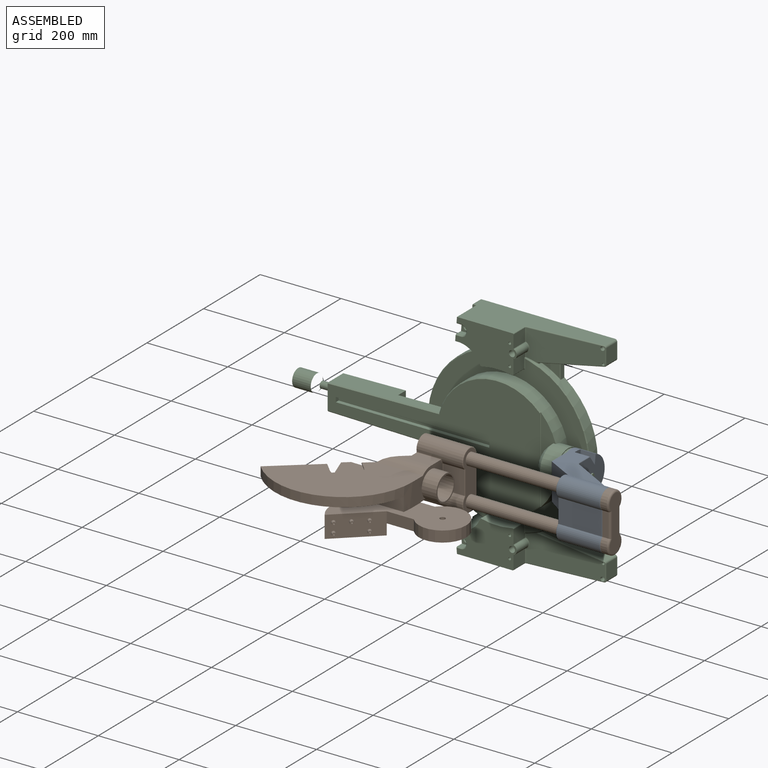
[diagram: assembled view]
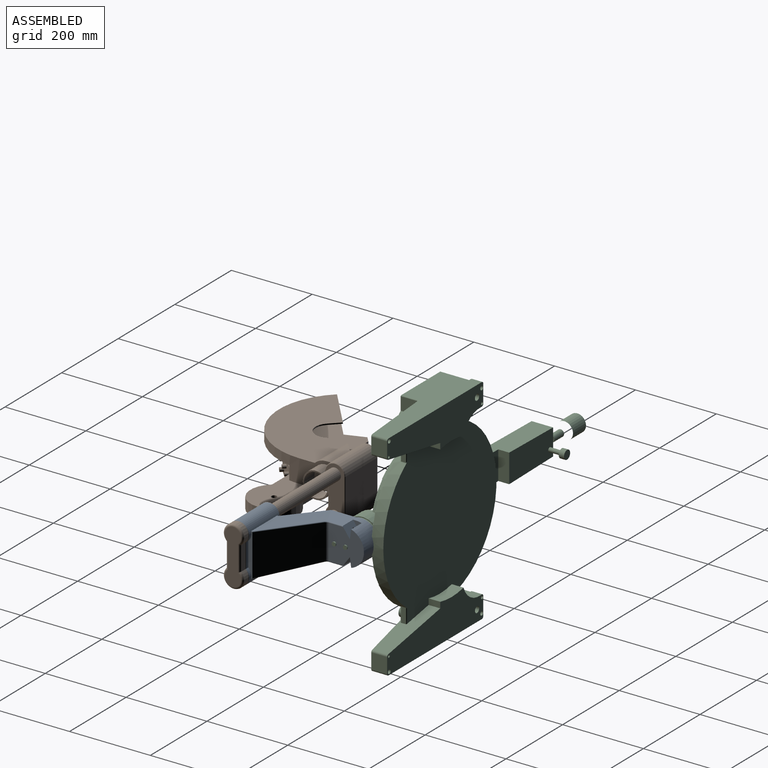
[diagram: assembled view, second angle]
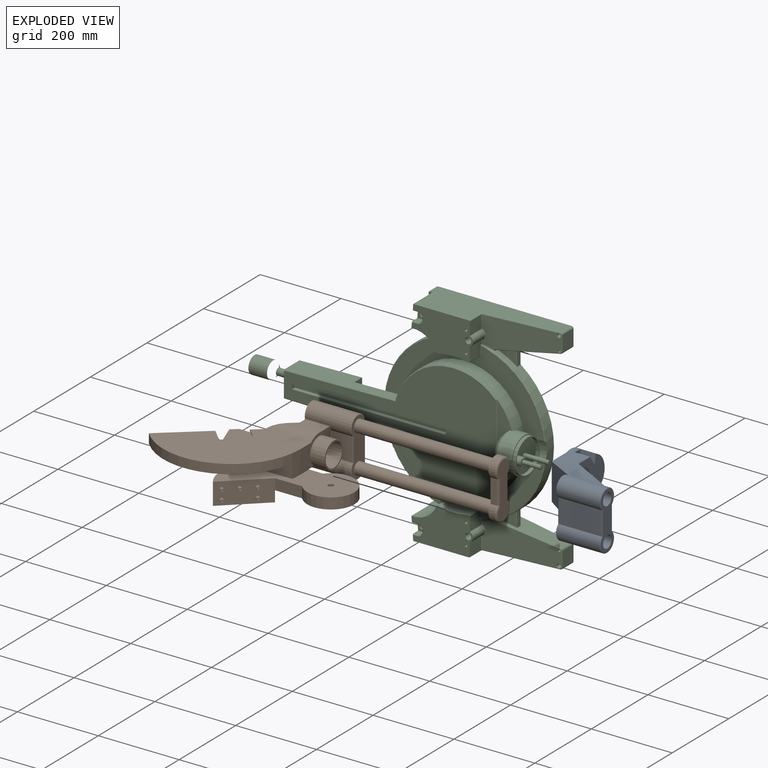
[diagram: exploded view]
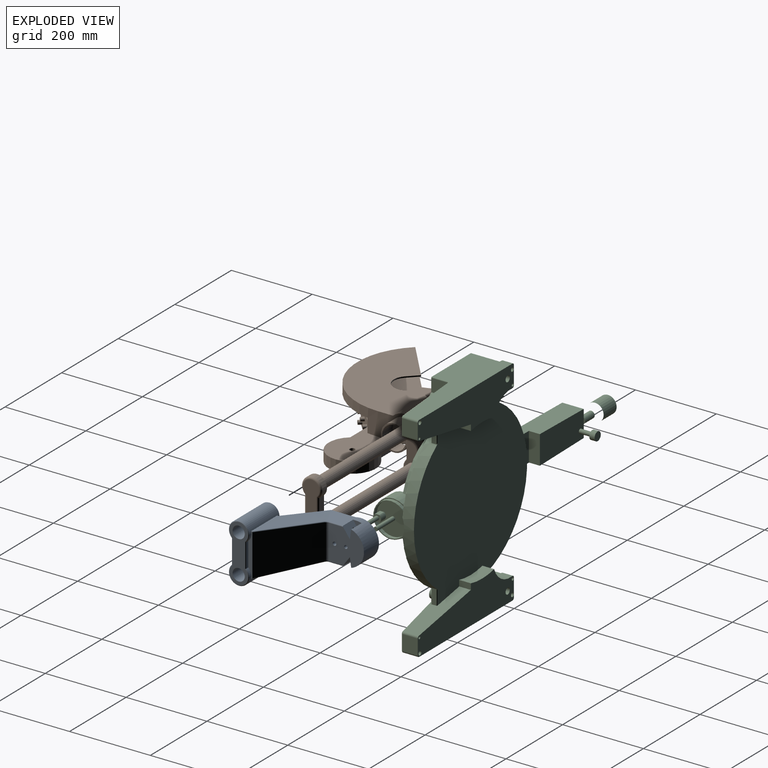
[diagram: exploded view, second angle]
ASSEMBLY  parts=3 mates=5
PART A: 60 faces, bbox 204.3x233.3x150.4 mm
  f0: cylinder r=40mm len=69.28mm, axis (1,0,0), area 837.8mm2, adj f1,f3,f7,f8
  f1: cylinder r=12mm len=22.39mm, axis (1,0,0), area 377mm2, adj f0,f2,f7,f8
  f2: cylinder r=16mm len=27.71mm, axis (1,0,0), area 335.1mm2, adj f1,f3,f7,f8
  f3: cylinder r=12mm len=22.39mm, axis (1,0,0), area 377mm2, adj f0,f2,f7,f8
  f4: cone r=1.23mm half-angle=59deg, axis (0,0.81,0.58), area 22.2mm2, adj f9
  f5: cylinder r=42mm len=84mm, axis (-1,0,0), area 791.7mm2, adj f8,f10
  f6: cone r=1.23mm half-angle=59deg, axis (0,0.81,-0.58), area 22.2mm2, adj f11
  f7: plane 72.5x38mm, normal (-1,0,0), area 1796.2mm2, adj f0,f1,f2,f3,f12
  f8: plane 84x84mm, normal (-1,0,0), area 3626.8mm2, adj f0,f1,f2,f3,f5,f15
  f9: cylinder r=2.46mm len=16.75mm, axis (0,-0.81,-0.58), area 264.1mm2, adj f4,f17
  f10: plane 90x90mm, normal (-1,0,0), area 820mm2, adj f5,f19
  f11: cylinder r=2.46mm len=16.75mm, axis (0,-0.81,0.58), area 264.1mm2, adj f6,f21
  f12: cylinder r=4.5mm len=40mm, axis (1,0,0), area 1131mm2, adj f7,f23
  f13: plane 37x23mm, normal (0,-0.99,-0.14), area 859.5mm2, adj f19,f20,f21,f23
  f14: plane 37x23mm, normal (0,-0.99,0.14), area 859.5mm2, adj f17,f18,f19,f23
  f15: cylinder r=4.19mm len=50mm, axis (1,0,0), area 1315.7mm2, adj f8,f23
  f16: cylinder r=2mm len=34.81mm, axis (0,1,0), area 107.1mm2, adj f17,f23,f25,f26
  f17: plane 37.62x25.62mm, normal (0,0.81,0.58), area 1119.8mm2, adj f9,f14,f16,f18,f23,f26
  f18: plane 25x21.27mm, normal (1,0,0), area 260.3mm2, adj f14,f17,f19,f26
  f19: cylinder r=45mm len=90mm, axis (1,0,0), area 6920.3mm2, adj f10,f13,f14,f18,f20,f23,f26,f27
  f20: plane 25x21.27mm, normal (1,0,0), area 260.3mm2, adj f13,f19,f21,f28
  f21: plane 37.62x25.62mm, normal (0,0.81,-0.58), area 1119.8mm2, adj f11,f13,f20,f22,f23,f28
  f22: cylinder r=2mm len=34.81mm, axis (0,-1,0), area 107.1mm2, adj f21,f23,f24,f28
  f23: plane 86.37x86mm, normal (1,0,0), area 6128.3mm2, adj f12,f13,f14,f15,f16,f17,f19,f21
  f24: torus R=12mm, axis (0,0,-1), area 17.2mm2, adj f22,f28,f30,f31,f34
  f25: torus R=12mm, axis (0,0,-1), area 17.2mm2, adj f16,f26,f29,f31,f32
  f26: plane 70.88x49.53mm, normal (0,0,1), area 2578.4mm2, adj f16,f17,f18,f19,f25,f27,f32,f33
  f27: plane 90x69.89mm, normal (-1,0,0), area 3109.1mm2, adj f19,f26,f28,f33
  f28: plane 70.88x49.53mm, normal (0,0,-1), area 2578.4mm2, adj f19,f20,f21,f22,f24,f27,f33,f34
  f29: torus R=12.04mm, axis (-0.03,0.05,1), area 16.9mm2, adj f25,f31,f32,f35
  f30: torus R=12.04mm, axis (0.03,-0.05,1), area 16.9mm2, adj f24,f31,f34,f36
  f31: cylinder r=10mm len=86.67mm, axis (0,0,-1), area 883.8mm2, adj f23,f24,f25,f29,f30,f37
  f32: bspline ~192.04x86.37mm, area 6377.7mm2, adj f25,f26,f29,f33,f35,f42,f43
  f33: cylinder r=2mm len=90.15mm, axis (0,0,1), area 182.8mm2, adj f26,f27,f28,f32,f34,f43
  f34: bspline ~192.54x86.37mm, area 6377.7mm2, adj f24,f28,f30,f33,f36,f43,f44
  f35: cylinder r=2mm len=137.94mm, axis (0.85,-0.52,0.05), area 482.6mm2, adj f29,f32,f37,f42,f45
  f36: cylinder r=2mm len=137.94mm, axis (0.85,-0.52,-0.05), area 482.6mm2, adj f30,f34,f37,f44,f45
  f37: plane 136.19x102.31mm, normal (0.52,0.86,0), area 15049.3mm2, adj f31,f35,f36,f45
  f38: cylinder r=2mm len=61.01mm, axis (0,0,-1), area 189mm2, adj f40,f41,f46,f47
  f39: cylinder r=2mm len=61.01mm, axis (0,0,1), area 189mm2, adj f40,f41,f47,f48
  f40: plane 141x46mm, normal (1,0,0), area 3545.9mm2, adj f38,f39,f41,f47,f49,f50
  f41: torus R=23mm, axis (-1,0,0), area 363.6mm2, adj f38,f39,f40,f51
  f42: plane 93.27x4.38mm, normal (0,0,1), area 284.3mm2, adj f32,f35,f45,f51,f52
  f43: plane 106x98.06mm, normal (-0.53,-0.85,0), area 11321.5mm2, adj f32,f33,f34,f52
  f44: plane 93.27x4.38mm, normal (0,0,-1), area 284.3mm2, adj f34,f36,f45,f52,f53
  f45: plane 106.29x10.29mm, normal (1,0,0), area 793.6mm2, adj f35,f36,f37,f42,f44,f46,f51,f53
  f46: plane 59.29x7mm, normal (0,1,0), area 415.1mm2, adj f38,f45,f51,f53
  f47: torus R=23mm, axis (-1,0,0), area 363.6mm2, adj f38,f39,f40,f53
  f48: plane 106x59.29mm, normal (0,-1,0), area 6285mm2, adj f39,f51,f53,f54
  f49: cylinder r=15mm len=110mm, axis (-1,0,0), area 10367.3mm2, adj f40,f55
  f50: cylinder r=15mm len=110mm, axis (-1,0,0), area 10367.3mm2, adj f40,f55
  f51: cylinder r=25mm len=106mm, axis (-1,0,0), area 10201.2mm2, adj f41,f42,f45,f46,f48,f52,f56,f57
  f52: plane 106x10mm, normal (-1,0,0), area 795mm2, adj f42,f43,f44,f51,f53,f57
  f53: cylinder r=25mm len=106mm, axis (-1,0,0), area 10201.2mm2, adj f44,f45,f46,f47,f48,f52,f57,f58
  f54: cylinder r=2mm len=61.01mm, axis (0,0,1), area 189mm2, adj f48,f55,f56,f58
  f55: plane 141x46mm, normal (-1,0,0), area 3545.9mm2, adj f49,f50,f54,f56,f58,f59
  f56: torus R=23mm, axis (-1,0,0), area 363.6mm2, adj f51,f54,f55,f59
  f57: plane 59.29x7mm, normal (0,1,0), area 415.1mm2, adj f51,f52,f53,f59
  f58: torus R=23mm, axis (-1,0,0), area 363.6mm2, adj f53,f54,f55,f59
  f59: cylinder r=2mm len=61.01mm, axis (0,0,-1), area 189mm2, adj f55,f56,f57,f58
PART B: 95 faces, bbox 710x322.1x157.1 mm
  f0: plane 135x40mm, normal (1,0,0), area 3957.9mm2, adj f1,f2,f3,f4
  f1: cylinder r=5mm len=63.78mm, axis (0,0,1), area 478.2mm2, adj f0,f2,f4,f5
  f2: torus R=20mm, axis (1,0,0), area 873.3mm2, adj f0,f1,f3,f6
  f3: cylinder r=5mm len=63.78mm, axis (0,0,-1), area 478.2mm2, adj f0,f2,f4,f7
  f4: torus R=20mm, axis (1,0,0), area 873.3mm2, adj f0,f1,f3,f8
  f5: plane 59.29x15mm, normal (0,1,0), area 889.4mm2, adj f1,f6,f8,f9
  f6: cylinder r=25mm len=50mm, axis (-1,0,0), area 1774.6mm2, adj f2,f5,f7,f9
  f7: plane 59.29x15mm, normal (0,-1,0), area 889.4mm2, adj f3,f6,f8,f9
  f8: cylinder r=25mm len=50mm, axis (-1,0,0), area 1774.6mm2, adj f4,f5,f7,f9
  f9: plane 145x50mm, normal (-1,0,0), area 4244.2mm2, adj f5,f6,f7,f8,f10,f11
  f10: cylinder r=15mm len=340mm, axis (1,0,0), area 32044.2mm2, adj f9,f15
  f11: cylinder r=15mm len=340mm, axis (1,0,0), area 32044.2mm2, adj f9,f15
  f12: cone r=0.81mm half-angle=59deg, axis (0.68,-0.73,0), area 9.6mm2, adj f17
  f13: cone r=0.81mm half-angle=59deg, axis (0.68,-0.73,0), area 9.6mm2, adj f18
  f14: cone r=0.81mm half-angle=59deg, axis (0.68,-0.73,0), area 9.6mm2, adj f19
  f15: plane 141x46mm, normal (1,0,0), area 4082.7mm2, adj f10,f11,f16,f20,f21,f22,f23,f24
  f16: torus R=4mm, axis (-1,0,0), area 6.5mm2, adj f15,f20,f24,f25
  f17: cylinder r=1.62mm len=10.87mm, axis (-0.68,0.73,0), area 120.2mm2, adj f12,f30
  f18: cylinder r=1.62mm len=10.87mm, axis (-0.68,0.73,0), area 120.2mm2, adj f13,f31
  f19: cylinder r=1.62mm len=10.87mm, axis (-0.68,0.73,0), area 120.2mm2, adj f14,f33
  f20: torus R=23mm, axis (-1,0,0), area 297.8mm2, adj f15,f16,f21,f36
  f21: cylinder r=2mm len=95mm, axis (0,0,1), area 298.5mm2, adj f15,f20,f22,f37
  f22: torus R=23mm, axis (-1,0,0), area 297.8mm2, adj f15,f21,f23,f38
  f23: torus R=4mm, axis (-1,0,0), area 6.5mm2, adj f15,f22,f24,f39
  f24: cylinder r=2mm len=57.65mm, axis (0,0,1), area 181.1mm2, adj f15,f16,f23,f40
  f25: cylinder r=2mm len=50.61mm, axis (-1,0,0), area 77.3mm2, adj f16,f34,f36,f40
  f26: plane 58x55.5mm, normal (1,0,0), area 2602.5mm2, adj f41,f42
  f27: cylinder r=1.62mm len=10.87mm, axis (-0.68,0.73,0), area 120.2mm2, adj f32,f45
  f28: cylinder r=1.62mm len=10.87mm, axis (-0.68,0.73,0), area 120.2mm2, adj f29,f46
  f29: plane 10x7.35mm, normal (0.68,-0.73,0), area 70.3mm2, adj f28,f49
  f30: plane 9.38x6.89mm, normal (0.68,-0.73,0), area 60.8mm2, adj f17,f50
  f31: plane 9.38x6.89mm, normal (0.68,-0.73,0), area 60.8mm2, adj f18,f51
  f32: plane 9.38x6.89mm, normal (0.68,-0.73,0), area 60.8mm2, adj f27,f52
  f33: plane 10x7.35mm, normal (0.68,-0.73,0), area 70.3mm2, adj f19,f53
  f34: sphere r=2mm, area 3.1mm2, adj f25,f56,f57
  f35: plane 65x65mm, normal (1,0,0), area 676.2mm2, adj f42,f61
  f36: cylinder r=25mm len=112.61mm, axis (-1,0,0), area 10128.7mm2, adj f20,f25,f37,f57,f58,f66
  f37: plane 112.61x95mm, normal (0,1,0), area 10697.9mm2, adj f21,f36,f38,f66
  f38: cylinder r=25mm len=112.61mm, axis (-1,0,0), area 10994.6mm2, adj f22,f37,f39,f66
  f39: cylinder r=2mm len=112.61mm, axis (-1,0,0), area 172mm2, adj f23,f38,f40,f66
  f40: plane 112.61x57.65mm, normal (0,-1,0), area 2940.2mm2, adj f24,f25,f39,f44,f56,f66,f69
  f41: cylinder r=2mm len=23.56mm, axis (0,1,0), area 50.7mm2, adj f26,f42,f69
  f42: cylinder r=29mm len=58mm, axis (-1,0,0), area 6677.9mm2, adj f26,f35,f41,f43,f69
  f43: plane 31.24x4mm, normal (-1,0,0), area 80.8mm2, adj f42,f61,f69
  f44: torus R=4mm, axis (0,0,-1), area 7.5mm2, adj f40,f55,f56,f69
  f45: cone r=0.81mm half-angle=59deg, axis (0.68,-0.73,0), area 3.5mm2, adj f27,f70
  f46: cone r=0.81mm half-angle=59deg, axis (0.68,-0.73,0), area 3.5mm2, adj f28,f70
  f47: cone r=0.81mm half-angle=59deg, axis (0,0,-1), area 9.6mm2, adj f72
  f48: cone r=0.81mm half-angle=59deg, axis (0,0,-1), area 9.6mm2, adj f73
  f49: cylinder r=5mm len=13.45mm, axis (0.68,-0.73,0), area 282.7mm2, adj f29,f76
  f50: cylinder r=4.69mm len=13mm, axis (0.68,-0.73,0), area 265.2mm2, adj f30,f76
  f51: cylinder r=4.69mm len=13mm, axis (0.68,-0.73,0), area 265.2mm2, adj f31,f76
  f52: cylinder r=4.69mm len=13mm, axis (0.68,-0.73,0), area 265.2mm2, adj f32,f76
  f53: cylinder r=5mm len=13.45mm, axis (0.68,-0.73,0), area 282.7mm2, adj f33,f76
  f54: plane 95.14x88.5mm, normal (0,0,-1), area 380.9mm2, adj f70,f71,f75,f76
  f55: cylinder r=2mm len=24.88mm, axis (0,1,0), area 74.3mm2, adj f44,f61,f69,f83
  f56: cylinder r=2mm len=55.33mm, axis (0,0,-1), area 173.8mm2, adj f34,f40,f44,f83
  f57: torus R=27mm, axis (1,0,0), area 41.2mm2, adj f34,f36,f58,f83
  f58: cylinder r=2mm len=62mm, axis (1,0,0), area 215.3mm2, adj f36,f57,f59,f66,f83
  f59: plane 81.12x33.57mm, normal (0,0,1), area 2201.1mm2, adj f58,f64,f65,f66,f83
  f60: cylinder r=2mm len=20.05mm, axis (0,1,0), area 59.2mm2, adj f61,f69,f79,f83
  f61: cylinder r=32.5mm len=65mm, axis (-1,0,0), area 7479.3mm2, adj f35,f43,f55,f60,f69,f83
  f62: plane 19.13x19.13mm, normal (-0.71,-0.71,0), area 81.2mm2, adj f63,f65,f81,f84
  f63: cylinder r=35mm len=59.75mm, axis (0,0,-1), area 329.9mm2, adj f62,f80,f81,f84
  f64: cylinder r=40mm len=114.57mm, axis (-1,0,0), area 3071.9mm2, adj f59,f65,f83,f84
  f65: plane 77.88x65.35mm, normal (-0.64,0.77,0), area 967.8mm2, adj f59,f62,f64,f66,f81,f84
  f66: plane 145x67.28mm, normal (-1,0,0), area 7115.7mm2, adj f36,f37,f38,f39,f40,f58,f59,f65
  f67: plane 48.14x40.39mm, normal (-0.64,0.77,0), area 2325mm2, adj f66,f68,f69,f85
  f68: plane 73.42x37mm, normal (0,1,0), area 2716.5mm2, adj f67,f69,f85,f86
  f69: plane 197.05x78.17mm, normal (0,0,-1), area 7228.1mm2, adj f40,f41,f42,f43,f44,f55,f60,f61
  f70: plane 93.29x86.09mm, normal (-0.68,0.73,0), area 3417.1mm2, adj f45,f46,f54,f71,f75,f87
  f71: plane 27x2.38mm, normal (0.79,0.61,0), area 81.3mm2, adj f54,f70,f76,f87
  f72: cylinder r=1.62mm len=11.8mm, axis (0,0,1), area 120.2mm2, adj f47,f87
  f73: cylinder r=1.62mm len=11.8mm, axis (0,0,1), area 120.2mm2, adj f48,f87
  f74: cylinder r=6.5mm len=27mm, axis (0,0,1), area 1102.7mm2, adj f87,f89
  f75: cylinder r=70mm len=86.13mm, axis (0,0,-1), area 2586.1mm2, adj f54,f70,f76,f87,f88,f89
  f76: plane 93.34x86.13mm, normal (0.68,-0.73,0), area 6493.7mm2, adj f49,f50,f51,f52,f53,f54,f71,f75
  f77: plane 67.07x27mm, normal (0,-1,0), area 1810.8mm2, adj f76,f78,f87,f89
  f78: cylinder r=58.5mm len=117mm, axis (0,0,-1), area 7761.2mm2, adj f77,f79,f87,f89
  f79: plane 231.73x29mm, normal (0,1,0), area 6257.7mm2, adj f60,f69,f78,f83,f86,f87,f89
  f80: plane 23.46x23.46mm, normal (0.71,0.71,0), area 99.5mm2, adj f63,f81,f84,f90
  f81: plane 292.65x290.09mm, normal (0,0,-1), area 37827.3mm2, adj f62,f63,f65,f66,f80,f82,f90
  f82: cylinder r=167mm len=292.65mm, axis (0,0,1), area 9230.3mm2, adj f66,f81,f85,f90
  f83: plane 105.5x68.56mm, normal (1,0,0), area 3341.7mm2, adj f55,f56,f57,f58,f59,f60,f61,f64
  f84: plane 295.39x206.93mm, normal (0,0,1), area 35041.1mm2, adj f62,f63,f64,f65,f80,f83,f90,f91
  f85: plane 292.65x290.09mm, normal (0,0,1), area 44549.4mm2, adj f66,f67,f68,f82,f86,f90,f93
  f86: plane 64x15.54mm, normal (-0.64,0.77,0), area 752.5mm2, adj f68,f69,f79,f85,f87,f93
  f87: plane 335.6x179.21mm, normal (0,0,-1), area 30600.4mm2, adj f70,f71,f72,f73,f74,f75,f77,f78
  f88: plane 44.46x27mm, normal (0,-1,0), area 1200.5mm2, adj f75,f87,f89,f93
  f89: plane 314.87x181.63mm, normal (0,0,1), area 20374.7mm2, adj f74,f75,f76,f77,f78,f79,f83,f88
  f90: plane 115.47x96.89mm, normal (-0.64,0.77,0), area 909.3mm2, adj f80,f81,f82,f84,f85,f91,f93,f94
  f91: cylinder r=170mm len=295.39mm, axis (0,0,-1), area 10330mm2, adj f83,f84,f89,f90,f92,f94
  f92: plane 174.1x34mm, normal (0,-1,0), area 5919.4mm2, adj f89,f91,f93,f94
  f93: plane 73.96x64mm, normal (-0.94,-0.34,0), area 4336.5mm2, adj f85,f86,f87,f88,f89,f90,f92,f94
  f94: plane 293.12x152.1mm, normal (0,0,-1), area 29280.3mm2, adj f90,f91,f92,f93
PART C: 221 faces, bbox 761.7x144.9x532.5 mm
  f0: plane 43x43mm, normal (-1,0,0), area 1452.2mm2, adj f1
  f1: cylinder r=21.5mm len=46mm, axis (-1,0,0), area 6214.1mm2, adj f0,f2
  f2: cone r=15mm half-angle=45deg, axis (-1,0,0), area 1732.7mm2, adj f1,f4
  f3: plane 22x22mm, normal (0,1,0), area 380.1mm2, adj f5
  f4: cylinder r=8.5mm len=34mm, axis (-1,0,0), area 1815.8mm2, adj f2,f6
  f5: cylinder r=11mm len=22mm, axis (0,1,0), area 898.5mm2, adj f3,f7
  f6: plane 17x17mm, normal (1,0,0), area 148.4mm2, adj f4,f29
  f7: plane 22x22mm, normal (0,-1,0), area 294.7mm2, adj f5,f30
  f8: plane 380x12mm, normal (0,-1,0), area 4560mm2, adj f31,f32,f33,f34
  f9: torus R=3mm, axis (0,1,0), area 21.1mm2, adj f10,f57,f67,f68
  f10: cylinder r=2mm len=45mm, axis (0,0,-1), area 127.2mm2, adj f9,f11,f53,f61,f62,f68
  f11: torus R=3mm, axis (0,1,0), area 20.6mm2, adj f10,f61,f63,f68,f69
  f12: plane 15x15mm, normal (0,-1,0), area 176.7mm2, adj f70
  f13: cone r=1.66mm half-angle=59deg, axis (0,-1,0), area 40.5mm2, adj f71
  f14: cone r=1.66mm half-angle=59deg, axis (0,-1,0), area 40.5mm2, adj f72
  f15: sphere r=2mm, area 2.8mm2, adj f50,f51,f73
  f16: sphere r=2mm, area 2.8mm2, adj f49,f50,f75
  f17: torus R=4mm, axis (0,0,-1), area 12.7mm2, adj f48,f49,f77,f78
  f18: cylinder r=12mm len=24mm, axis (0,1,0), area 640.9mm2, adj f64,f65,f66,f80
  f19: plane 15x15mm, normal (0,-1,0), area 176.7mm2, adj f82
  f20: cone r=1.66mm half-angle=59deg, axis (0,-1,0), area 40.5mm2, adj f83
  f21: cone r=1.66mm half-angle=59deg, axis (0,-1,0), area 40.5mm2, adj f84
  f22: sphere r=2mm, area 2.8mm2, adj f35,f36,f88
  f23: cylinder r=12mm len=24mm, axis (0,1,0), area 640.9mm2, adj f85,f91,f92,f93
  f24: torus R=4mm, axis (0,0,-1), area 12.7mm2, adj f36,f37,f86,f103
  f25: torus R=3mm, axis (0,1,0), area 20.6mm2, adj f26,f95,f97,f101,f107
  f26: cylinder r=2mm len=45mm, axis (0,0,-1), area 127.2mm2, adj f25,f27,f95,f101,f102,f108
  f27: torus R=3mm, axis (0,1,0), area 21.1mm2, adj f26,f95,f96,f109
  f28: sphere r=2mm, area 2.8mm2, adj f35,f110,f111
  f29: cylinder r=5mm len=10mm, axis (-1,0,0), area 314.2mm2, adj f6,f114
  f30: cylinder r=5.22mm len=30mm, axis (0,1,0), area 983.1mm2, adj f7,f115
  f31: plane 12x10mm, normal (-1,0,0), area 120mm2, adj f8,f32,f34,f117
  f32: plane 380x10mm, normal (0,0,1), area 3800mm2, adj f8,f31,f33,f117
  f33: plane 12x10mm, normal (1,0,0), area 120mm2, adj f8,f32,f34,f117
  f34: plane 380x10mm, normal (0,0,-1), area 3800mm2, adj f8,f31,f33,f117
  f35: torus R=13.97mm, axis (0.08,-1,0), area 88.3mm2, adj f22,f28,f89,f120
  f36: cylinder r=2mm len=31.35mm, axis (0,0,1), area 93.2mm2, adj f22,f24,f87,f120
  f37: cylinder r=2mm len=181.51mm, axis (-1,-0.08,0), area 571.7mm2, adj f24,f38,f103,f120
  f38: torus R=3.01mm, axis (0.08,-1,0), area 20.4mm2, adj f37,f39,f104,f120
  f39: cylinder r=2mm len=37.66mm, axis (0,0,1), area 111.9mm2, adj f38,f40,f105,f120
  f40: torus R=3mm, axis (0.08,-1,0), area 18.1mm2, adj f39,f106,f120,f121
  f41: torus R=4.03mm, axis (1,0,0), area 8.9mm2, adj f42,f124,f125,f128
  f42: cylinder r=2mm len=44.83mm, axis (-0.98,0,0.17), area 140.8mm2, adj f41,f122,f123,f128
  f43: torus R=4.03mm, axis (1,0,0), area 8.9mm2, adj f44,f131,f132,f134
  f44: cylinder r=2mm len=44.83mm, axis (0.98,0,0.17), area 140.8mm2, adj f43,f133,f134,f135
  f45: torus R=3mm, axis (0.08,-1,0), area 18.1mm2, adj f46,f54,f136,f137
  f46: cylinder r=2mm len=37.66mm, axis (0,0,1), area 111.9mm2, adj f45,f47,f55,f137
  f47: torus R=3.01mm, axis (0.08,-1,0), area 20.4mm2, adj f46,f48,f56,f137
  f48: cylinder r=2mm len=181.51mm, axis (-1,-0.08,0), area 571.7mm2, adj f17,f47,f78,f137
  f49: cylinder r=2mm len=31.35mm, axis (0,0,1), area 93.2mm2, adj f16,f17,f76,f137
  f50: torus R=13.97mm, axis (0.08,-1,0), area 88.4mm2, adj f15,f16,f74,f137
  f51: cylinder r=2mm len=8.77mm, axis (0,0,1), area 26.1mm2, adj f15,f137,f138,f139
  f52: cylinder r=2mm len=3.16mm, axis (0,-1,0), area 2.9mm2, adj f138,f139,f140
  f53: plane 45x26mm, normal (-1,0,0), area 1170mm2, adj f10,f57,f63,f146
  f54: cylinder r=5mm len=38.39mm, axis (0,-1,0), area 267.3mm2, adj f45,f55,f134,f146
  f55: plane 38.18x37.66mm, normal (1,0,0), area 1437.6mm2, adj f46,f54,f56,f146
  f56: cylinder r=5mm len=38.43mm, axis (0,-1,0), area 300.8mm2, adj f47,f55,f78,f146
  f57: cylinder r=5mm len=26mm, axis (0,-1,0), area 204.2mm2, adj f9,f53,f78,f146
  f58: cylinder r=7.5mm len=79mm, axis (0,1,0), area 3722.8mm2, adj f65,f146
  f59: cylinder r=3.09mm len=40.83mm, axis (0,-1,0), area 786.5mm2, adj f137,f146
  f60: cylinder r=5mm len=41.12mm, axis (0,-1,0), area 1278.5mm2, adj f137,f146
  f61: cylinder r=3.5mm len=28mm, axis (0,-1,0), area 615.1mm2, adj f10,f11,f68,f146
  f62: cylinder r=5mm len=28mm, axis (0,-1,0), area 879.6mm2, adj f10,f68,f146
  f63: cylinder r=5mm len=26mm, axis (0,-1,0), area 204.2mm2, adj f11,f53,f146,f147
  f64: plane 17x13.23mm, normal (0,0,1), area 224.9mm2, adj f18,f65,f81,f148
  f65: plane 25.23x24mm, normal (0,-1,0), area 343.5mm2, adj f18,f58,f64,f66,f148
  f66: plane 17x11.27mm, normal (0,0,-1), area 191.6mm2, adj f18,f65,f79,f148
  f67: cylinder r=2mm len=7mm, axis (-1,0,0), area 21.7mm2, adj f9,f68,f78,f148
  f68: plane 51x9.84mm, normal (0,-1,0), area 287.8mm2, adj f9,f10,f11,f61,f62,f67,f69,f148
  f69: cylinder r=2mm len=2.66mm, axis (1,0,0), area 8.1mm2, adj f11,f68,f147,f148
  f70: cylinder r=7.5mm len=30mm, axis (0,1,0), area 1413.7mm2, adj f12,f149
  f71: cylinder r=3.32mm len=20mm, axis (0,1,0), area 417.6mm2, adj f13,f149
  f72: cylinder r=3.32mm len=20mm, axis (0,1,0), area 417.6mm2, adj f14,f149
  f73: cylinder r=2mm len=40.16mm, axis (0,-1,0), area 90.6mm2, adj f15,f74,f139,f149
  f74: cylinder r=12mm len=40.16mm, axis (0,1,0), area 1087.2mm2, adj f50,f73,f75,f149
  f75: cylinder r=2mm len=40.16mm, axis (0,1,0), area 90.6mm2, adj f16,f74,f76,f149
  f76: plane 40.16x31.35mm, normal (1,0,0), area 1259.1mm2, adj f49,f75,f77,f149
  f77: cylinder r=2mm len=40.16mm, axis (0,1,0), area 126.2mm2, adj f17,f76,f78,f149
  f78: plane 330x98mm, normal (0,0,1), area 22273.9mm2, adj f17,f48,f56,f57,f67,f77,f146,f148
  f79: plane 11.27x2mm, normal (0,-0.71,-0.71), area 31.6mm2, adj f66,f80,f148,f149
  f80: cone r=13mm half-angle=45deg, axis (0,-1,0), area 115.5mm2, adj f18,f79,f81,f149
  f81: plane 13.4x2mm, normal (0,-0.71,0.71), area 37.7mm2, adj f64,f80,f148,f149
  f82: cylinder r=7.5mm len=30mm, axis (0,1,0), area 1413.7mm2, adj f19,f151
  f83: cylinder r=3.32mm len=20mm, axis (0,1,0), area 417.6mm2, adj f20,f151
  f84: cylinder r=3.32mm len=20mm, axis (0,1,0), area 417.6mm2, adj f21,f151
  f85: cone r=13mm half-angle=45deg, axis (0,-1,0), area 115.5mm2, adj f23,f90,f94,f151
  f86: cylinder r=2mm len=40.16mm, axis (0,1,0), area 126.2mm2, adj f24,f87,f103,f151
  f87: plane 40.16x31.35mm, normal (1,0,0), area 1259.1mm2, adj f36,f86,f88,f151
  f88: cylinder r=2mm len=40.16mm, axis (0,-1,0), area 90.6mm2, adj f22,f87,f89,f151
  f89: cylinder r=12mm len=40.16mm, axis (0,1,0), area 1087.2mm2, adj f35,f88,f110,f151
  f90: plane 11.27x2mm, normal (0,-0.71,0.71), area 31.6mm2, adj f85,f91,f151,f152
  f91: plane 17x11.27mm, normal (0,0,1), area 191.6mm2, adj f23,f90,f92,f152
  f92: plane 25.23x24mm, normal (0,-1,0), area 343.5mm2, adj f23,f91,f93,f98,f152
  f93: plane 17x13.23mm, normal (0,0,-1), area 224.9mm2, adj f23,f92,f94,f152
  f94: plane 13.4x2mm, normal (0,-0.71,-0.71), area 37.7mm2, adj f85,f93,f151,f152
  f95: plane 51x9.84mm, normal (0,-1,0), area 287.8mm2, adj f25,f26,f27,f96,f97,f101,f102,f152
  f96: cylinder r=2mm len=7mm, axis (-1,0,0), area 21.7mm2, adj f27,f95,f103,f152
  f97: cylinder r=2mm len=2.66mm, axis (1,0,0), area 8.1mm2, adj f25,f95,f152,f153
  f98: cylinder r=7.5mm len=79mm, axis (0,1,0), area 3722.8mm2, adj f92,f154
  f99: cylinder r=3.09mm len=40.83mm, axis (0,-1,0), area 786.5mm2, adj f120,f154
  f100: cylinder r=5mm len=41.12mm, axis (0,-1,0), area 1291.8mm2, adj f120,f154
  f101: cylinder r=3.5mm len=28mm, axis (0,-1,0), area 615.1mm2, adj f25,f26,f95,f154
  f102: cylinder r=5mm len=28mm, axis (0,-1,0), area 879.6mm2, adj f26,f95,f154
  f103: plane 330x98mm, normal (0,0,-1), area 22273.9mm2, adj f24,f37,f86,f96,f104,f109,f151,f152
  f104: cylinder r=5mm len=38.43mm, axis (0,-1,0), area 300.8mm2, adj f38,f103,f105,f154
  f105: plane 38.18x37.66mm, normal (1,0,0), area 1437.6mm2, adj f39,f104,f106,f154
  f106: cylinder r=5mm len=38.39mm, axis (0,-1,0), area 267.3mm2, adj f40,f105,f128,f154
  f107: cylinder r=5mm len=26mm, axis (0,-1,0), area 204.2mm2, adj f25,f108,f153,f154
  f108: plane 45x26mm, normal (-1,0,0), area 1170mm2, adj f26,f107,f109,f154
  f109: cylinder r=5mm len=26mm, axis (0,-1,0), area 204.2mm2, adj f27,f103,f108,f154
  f110: cylinder r=2mm len=40.16mm, axis (0,1,0), area 90.6mm2, adj f28,f89,f151,f160
  f111: cylinder r=2mm len=8.77mm, axis (0,0,1), area 26.1mm2, adj f28,f119,f120,f160
  f112: cylinder r=2mm len=3.16mm, axis (0,1,0), area 2.9mm2, adj f119,f160,f162
  f113: plane 276.34x7.01mm, normal (-0.01,-0.71,-0.71), area 779.5mm2, adj f114,f117,f165,f166
  f114: plane 65x55mm, normal (-1,0,0), area 3492.5mm2, adj f29,f113,f115,f117,f118,f166,f168
  f115: plane 155x70.64mm, normal (0,1,0), area 10426.7mm2, adj f30,f114,f116,f166,f168
  f116: plane 70.64x27mm, normal (1,0,0), area 1907.3mm2, adj f115,f166,f167,f168
  f117: plane 525x296mm, normal (0,-1,0), area 76114.5mm2, adj f31,f32,f33,f34,f113,f114,f118,f164
  f118: plane 276.34x7.01mm, normal (-0.01,-0.71,0.71), area 779.5mm2, adj f114,f117,f168,f169
  f119: sphere r=2mm, area 5mm2, adj f111,f112,f161,f170
  f120: plane 186.04x73.36mm, normal (0.08,-1,0), area 10612.7mm2, adj f35,f36,f37,f38,f39,f40,f99,f100
  f121: cylinder r=2mm len=159.31mm, axis (0.98,0.08,-0.17), area 493.3mm2, adj f40,f120,f128,f171
  f122: plane 43.78x31mm, normal (0,-1,0), area 628.1mm2, adj f42,f124,f173
  f123: sphere r=2mm, area 6.9mm2, adj f42,f172,f173
  f124: cylinder r=2mm len=33.88mm, axis (0,0,1), area 101.9mm2, adj f41,f122,f125,f174
  f125: plane 36.26x11.76mm, normal (1,0,0), area 399.4mm2, adj f41,f124,f128,f129,f175
  f126: plane 29x14.63mm, normal (1,0,0), area 424.3mm2, adj f134,f145,f146,f177
  f127: plane 29x14.63mm, normal (1,0,0), area 424.3mm2, adj f128,f154,f155,f177
  f128: plane 184.46x51.9mm, normal (0.17,0,0.98), area 7067.2mm2, adj f41,f42,f106,f121,f125,f127,f129,f154
  f129: cylinder r=2mm len=36.26mm, axis (0,0,-1), area 108.8mm2, adj f125,f128,f176,f177
  f130: cylinder r=2mm len=36.26mm, axis (0,0,-1), area 108.8mm2, adj f131,f134,f177,f178
  f131: plane 36.26x11.76mm, normal (1,0,0), area 399.4mm2, adj f43,f130,f132,f134,f179
  f132: cylinder r=2mm len=33.88mm, axis (0,0,1), area 101.9mm2, adj f43,f131,f133,f180
  f133: plane 43.78x31mm, normal (0,-1,0), area 628.1mm2, adj f44,f132,f181
  f134: plane 184.46x51.9mm, normal (0.17,0,-0.98), area 7067.2mm2, adj f43,f44,f54,f126,f130,f131,f136,f146
  f135: sphere r=2mm, area 6.9mm2, adj f44,f181,f182
  f136: cylinder r=2mm len=159.31mm, axis (0.98,0.08,0.17), area 493.3mm2, adj f45,f134,f137,f183
  f137: plane 185.7x73.03mm, normal (0.08,-1,0), area 10613.3mm2, adj f45,f46,f47,f48,f49,f50,f51,f59
  f138: sphere r=2mm, area 5mm2, adj f51,f52,f141,f184
  f139: plane 40.16x33.48mm, normal (1,0,0), area 1266.4mm2, adj f51,f52,f73,f143,f149,f186
  f140: bspline ~3.21x3.21mm, area 2.5mm2, adj f52,f141,f186
  f141: bspline ~2.26x1.96mm, area 2.2mm2, adj f138,f140,f142,f186
  f142: cylinder r=2mm len=2.15mm, axis (0.97,0.11,-0.2), area 1.9mm2, adj f141,f184,f185,f186
  f143: cylinder r=2mm len=37mm, axis (0,1,0), area 132.3mm2, adj f139,f144,f149,f187
  f144: cylinder r=175mm len=77.84mm, axis (0,1,0), area 2904.5mm2, adj f143,f149,f150,f188
  f145: cylinder r=175mm len=82mm, axis (0,1,0), area 2400.4mm2, adj f126,f146,f177,f190
  f146: plane 340x95.11mm, normal (0,1,0), area 23466mm2, adj f53,f54,f55,f56,f57,f58,f59,f60
  f147: plane 26x2.5mm, normal (0,0,-1), area 65mm2, adj f63,f69,f146,f190
  f148: plane 72.09x55.09mm, normal (-1,0,0.08), area 3403.1mm2, adj f64,f65,f66,f67,f68,f69,f78,f79
  f149: plane 152.5x94.75mm, normal (0,-1,0), area 10660.3mm2, adj f70,f71,f72,f73,f74,f75,f76,f77
  f150: cylinder r=2mm len=37mm, axis (0,1,0), area 106.6mm2, adj f144,f149,f189,f190
  f151: plane 152.5x94.75mm, normal (0,-1,0), area 10660.3mm2, adj f82,f83,f84,f85,f86,f87,f88,f89
  f152: plane 72.09x55.09mm, normal (-1,0,-0.08), area 3403.1mm2, adj f90,f91,f92,f93,f94,f95,f96,f97
  f153: plane 26x2.5mm, normal (0,0,1), area 65mm2, adj f97,f107,f154,f192
  f154: plane 340x95.11mm, normal (0,1,0), area 23466mm2, adj f98,f99,f100,f101,f102,f103,f104,f105
  f155: cylinder r=175mm len=82mm, axis (0,1,0), area 2400.4mm2, adj f127,f154,f177,f192
  f156: cylinder r=200mm len=384.19mm, axis (0,-1,0), area 14433.3mm2, adj f177,f190,f191,f192
  f157: cylinder r=2mm len=37mm, axis (0,1,0), area 106.6mm2, adj f151,f158,f192,f193
  f158: cylinder r=175mm len=77.84mm, axis (0,1,0), area 2904.5mm2, adj f151,f157,f159,f194
  f159: cylinder r=2mm len=37mm, axis (0,1,0), area 132.3mm2, adj f151,f158,f160,f195
  f160: plane 40.16x33.48mm, normal (1,0,0), area 1266.4mm2, adj f110,f111,f112,f151,f159,f196
  f161: bspline ~2.25x1.95mm, area 2.2mm2, adj f119,f162,f163,f196
  f162: bspline ~3.21x3.21mm, area 2.5mm2, adj f112,f161,f196
  f163: cylinder r=2mm len=2.15mm, axis (-0.97,-0.11,-0.2), area 1.9mm2, adj f161,f170,f196,f197
  f164: cylinder r=2mm len=210.25mm, axis (0,0,1), area 657.9mm2, adj f117,f165,f169,f200
  f165: cone r=149mm half-angle=45deg, axis (0,1,0), area 888.9mm2, adj f113,f117,f164,f201
  f166: plane 274.76x53mm, normal (-0.02,0,-1), area 11330.7mm2, adj f113,f114,f115,f116,f167,f201
  f167: plane 119.76x75mm, normal (0,1,0), area 8482.3mm2, adj f116,f166,f168,f201
  f168: plane 274.76x53mm, normal (-0.02,0,1), area 11330.7mm2, adj f114,f115,f116,f118,f167,f201
  f169: cone r=149mm half-angle=45deg, axis (0,1,0), area 888.9mm2, adj f117,f118,f164,f201
  f170: torus R=202.8mm, axis (0.08,-1,0), area 70.8mm2, adj f119,f120,f163,f171,f197,f203
  f171: bspline ~7.86x4.6mm, area 31.1mm2, adj f121,f170,f172,f203
  f172: cylinder r=2mm len=5.31mm, axis (0,1,0), area 27.6mm2, adj f123,f128,f171,f203
  f173: torus R=202mm, axis (0,-1,0), area 155.2mm2, adj f122,f123,f174,f203
  f174: bspline ~4.49x4mm, area 12.9mm2, adj f124,f173,f175,f203
  f175: cylinder r=2mm len=11mm, axis (0,1,0), area 20.6mm2, adj f125,f174,f176,f203
  f176: bspline ~4.49x4mm, area 7.2mm2, adj f129,f175,f177,f203
  f177: plane 401.07x397.88mm, normal (0,1,0), area 122613mm2, adj f126,f127,f128,f129,f130,f134,f145,f155
  f178: bspline ~4.53x4.07mm, area 7.2mm2, adj f130,f177,f179,f203
  f179: cylinder r=2mm len=11mm, axis (0,-1,0), area 20.6mm2, adj f131,f178,f180,f203
  f180: bspline ~4.49x4mm, area 12.9mm2, adj f132,f179,f181,f203
  f181: torus R=202mm, axis (0,-1,0), area 155.2mm2, adj f133,f135,f180,f203
  f182: cylinder r=2mm len=5.31mm, axis (0,-1,0), area 27.6mm2, adj f134,f135,f183,f203
  f183: bspline ~7.86x4.6mm, area 31.1mm2, adj f136,f182,f184,f203
  f184: torus R=202.8mm, axis (0.08,-1,0), area 70.8mm2, adj f137,f138,f142,f183,f185,f203
  f185: bspline ~9.33x4.11mm, area 26.9mm2, adj f142,f184,f202,f205
  f186: cylinder r=2mm len=24.71mm, axis (0,0,-1), area 70mm2, adj f139,f140,f141,f142,f187,f205
  f187: torus R=4mm, axis (0,1,0), area 15.3mm2, adj f143,f186,f188,f205
  f188: torus R=173mm, axis (0,-1,0), area 245mm2, adj f144,f187,f189,f205
  f189: torus R=4.01mm, axis (0.95,-0.02,0.31), area 7.9mm2, adj f150,f188,f190,f205
  f190: cylinder r=60mm len=98mm, axis (0,1,0), area 6993mm2, adj f145,f146,f147,f148,f149,f150,f156,f177
  f191: torus R=198mm, axis (0,-1,0), area 1616.7mm2, adj f156,f190,f192,f205
  f192: cylinder r=60mm len=98mm, axis (0,1,0), area 6993mm2, adj f151,f152,f153,f154,f155,f156,f157,f177
  f193: torus R=4.01mm, axis (0.95,-0.02,-0.31), area 7.9mm2, adj f157,f192,f194,f205
  f194: torus R=173mm, axis (0,-1,0), area 245mm2, adj f158,f193,f195,f205
  f195: torus R=4mm, axis (0,1,0), area 15.3mm2, adj f159,f194,f196,f205
  f196: cylinder r=2mm len=24.71mm, axis (0,0,-1), area 70mm2, adj f160,f161,f162,f163,f195,f205
  f197: bspline ~9.33x4.11mm, area 26.9mm2, adj f163,f170,f204,f205
  f198: plane 10x10mm, normal (1,0,0), area 78.5mm2, adj f206
  f199: sphere r=54.19mm, area 4298mm2, adj f200,f207
  f200: plane 210.25x36.11mm, normal (0,-1,0), area 3745.1mm2, adj f164,f199,f201,f207
  f201: cylinder r=150mm len=300mm, axis (0,-1,0), area 30377.7mm2, adj f165,f166,f167,f168,f169,f200,f205,f207
  f202: torus R=198mm, axis (0,-1,0), area 756.2mm2, adj f185,f203,f205,f208
  f203: cylinder r=200mm len=386.6mm, axis (0,-1,0), area 11618.5mm2, adj f170,f171,f172,f173,f174,f175,f176,f177
  f204: torus R=198mm, axis (0,-1,0), area 756.2mm2, adj f197,f203,f205,f208
  f205: plane 395.52x387.93mm, normal (0,-1,0), area 45846.7mm2, adj f185,f186,f187,f188,f189,f190,f191,f192
  f206: cylinder r=5mm len=45mm, axis (1,0,0), area 1413.7mm2, adj f198,f210
  f207: cylinder r=45mm len=90mm, axis (1,0,0), area 8171.1mm2, adj f199,f200,f201,f205,f211
  f208: cylinder r=45mm len=44.9mm, axis (1,0,0), area 1124.1mm2, adj f202,f203,f204,f205,f211
  f209: plane 10x10mm, normal (1,0,0), area 78.5mm2, adj f212
  f210: plane 20x17mm, normal (1,0,0), area 214.1mm2, adj f206,f213,f214,f215,f216
  f211: plane 90x90mm, normal (1,0,0), area 610.1mm2, adj f207,f208,f217
  f212: cylinder r=5mm len=62mm, axis (1,0,0), area 1947.8mm2, adj f209,f218
  f213: cylinder r=9.72mm len=17mm, axis (1,0,0), area 351.6mm2, adj f210,f214,f216,f218
  f214: plane 17x10.5mm, normal (0,0,1), area 178.5mm2, adj f210,f213,f215,f218
  f215: cylinder r=10.27mm len=17mm, axis (1,0,0), area 340.3mm2, adj f210,f214,f216,f218
  f216: plane 17x10.5mm, normal (0,0,-1), area 178.5mm2, adj f210,f213,f215,f218
  f217: cylinder r=42.79mm len=85.58mm, axis (1,0,0), area 2419.6mm2, adj f211,f219
  f218: plane 81x81mm, normal (1,0,0), area 4781.8mm2, adj f212,f213,f214,f215,f216,f220
  f219: plane 85.58x85.58mm, normal (1,0,0), area 598.7mm2, adj f217,f220
  f220: cylinder r=40.5mm len=81mm, axis (1,0,0), area 2290.2mm2, adj f218,f219
PLACE A t=(401.6,139.74,-8.69)mm
PLACE B t=(86.99,7.07,-37.19)mm
PLACE C t=(17.6,368.74,-8.69)mm fixed
MATE planar A.f40 <-> B.f9  axis (1,0,0) through (401.6,139.74,-8.69)mm
MATE cylindrical A.f12 <-> C.f206  axis (-1,0,0) through (211.6,271.74,-8.69)mm
MATE cylindrical C.f212 <-> A.f0  axis (1,0,0) through (223.6,299.74,-8.69)mm
MATE planar A.f8 <-> C.f207  axis (-1,0,0) through (201.6,310.47,-8.69)mm
MATE slider B.f57 <-> A.f41  axis (1,0,0) through (231.6,139.74,38.81)mm
